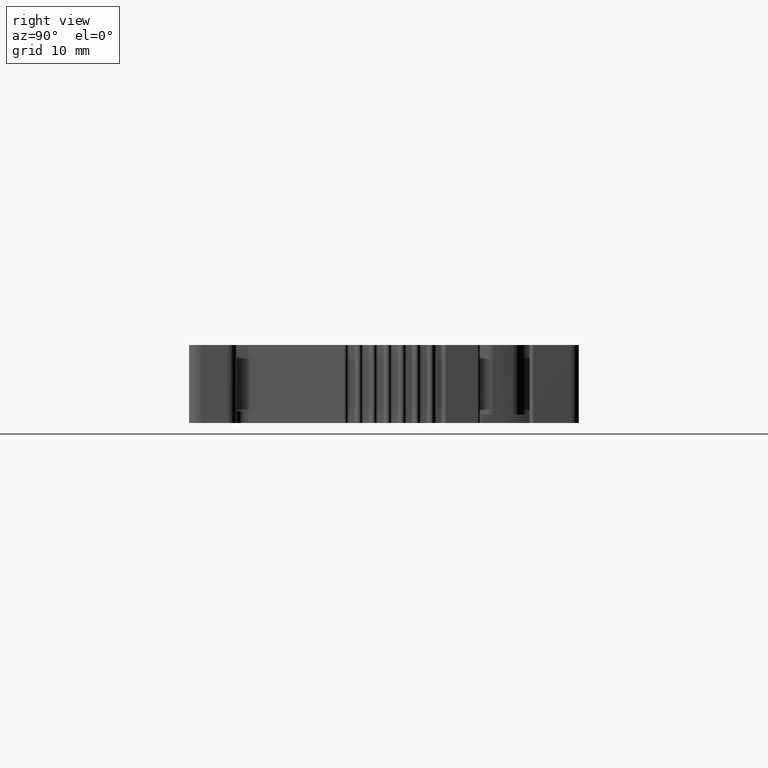
[diagram: clean part render]
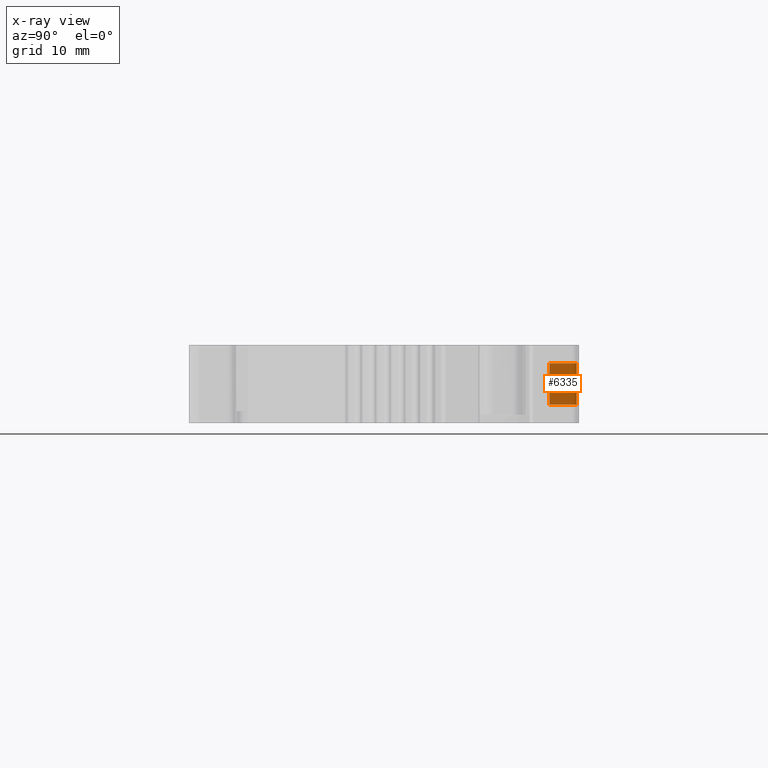
[diagram: x-ray — body ghosted, one internal face saturated and labeled with its STEP entity id]
A machine part, right view, then the same camera in x-ray: the body is ghosted and one INTERNAL B-rep face — a face not visible from any outside direction — is saturated and labeled: STEP entity #6335.
In plain terms, the highlighted planar face has unit normal (1, 0, 0).
Its self-contained STEP definition (entity closure, byte-faithful):
#134 = AXIS2_PLACEMENT_3D ( 'NONE', #9452, #9432, #9437 ) ;
#3385 = VECTOR ( 'NONE', #7196, 1000.000000000000000 ) ;
#3419 = VECTOR ( 'NONE', #7173, 1000.000000000000000 ) ;
#3735 = VECTOR ( 'NONE', #7086, 1000.000000000000000 ) ;
#3762 = VECTOR ( 'NONE', #7099, 1000.000000000000000 ) ;
#4358 = ORIENTED_EDGE ( 'NONE', *, *, #5331, .F. ) ;
#4396 = ORIENTED_EDGE ( 'NONE', *, *, #5384, .T. ) ;
#4402 = ORIENTED_EDGE ( 'NONE', *, *, #5383, .T. ) ;
#4474 = ORIENTED_EDGE ( 'NONE', *, *, #5321, .F. ) ;
#5321 = EDGE_CURVE ( 'NONE', #11744, #11736, #7083, .T. ) ;
#5331 = EDGE_CURVE ( 'NONE', #11736, #11711, #7111, .T. ) ;
#5383 = EDGE_CURVE ( 'NONE', #11744, #11684, #7193, .T. ) ;
#5384 = EDGE_CURVE ( 'NONE', #11684, #11711, #7218, .T. ) ;
#6335 = ADVANCED_FACE ( 'NONE', ( #9415 ), #9421, .F. ) ;
#7083 = LINE ( 'NONE', #7102, #3762 ) ;
#7086 = DIRECTION ( 'NONE',  ( 0.0000000000000000000, 0.0000000000000000000, -1.000000000000000000 ) ) ;
#7099 = DIRECTION ( 'NONE',  ( 0.0000000000000000000, -1.000000000000000000, 0.0000000000000000000 ) ) ;
#7102 = CARTESIAN_POINT ( 'NONE',  ( 1919.347152070065000, -1.498854852143770000E-010, 1.750000000000000000 ) ) ;
#7111 = LINE ( 'NONE', #7113, #3735 ) ;
#7113 = CARTESIAN_POINT ( 'NONE',  ( 1919.347152070065000, 518.1833391115568500, 64.80301117275325900 ) ) ;
#7173 = DIRECTION ( 'NONE',  ( 0.0000000000000000000, 0.0000000000000000000, -1.000000000000000000 ) ) ;
#7190 = CARTESIAN_POINT ( 'NONE',  ( 1919.347152070065000, -1.498854852143770000E-010, -1.750000000000000000 ) ) ;
#7193 = LINE ( 'NONE', #7201, #3419 ) ;
#7196 = DIRECTION ( 'NONE',  ( 0.0000000000000000000, -1.000000000000000000, 0.0000000000000000000 ) ) ;
#7201 = CARTESIAN_POINT ( 'NONE',  ( 1919.347152070065000, 520.4804094398359700, 1.750000000000000000 ) ) ;
#7218 = LINE ( 'NONE', #7190, #3385 ) ;
#8169 = CARTESIAN_POINT ( 'NONE',  ( 1919.347152070065000, 518.1833391115568500, -1.750000000000000000 ) ) ;
#8171 = CARTESIAN_POINT ( 'NONE',  ( 1919.347152070065000, 520.4804094398359700, 1.750000000000000000 ) ) ;
#8214 = CARTESIAN_POINT ( 'NONE',  ( 1919.347152070065000, 520.4804094398359700, -1.750000000000000000 ) ) ;
#8217 = CARTESIAN_POINT ( 'NONE',  ( 1919.347152070065000, 518.1833391115568500, 1.750000000000000000 ) ) ;
#9415 = FACE_OUTER_BOUND ( 'NONE', #10390, .T. ) ;
#9421 = PLANE ( 'NONE',  #134 ) ;
#9432 = DIRECTION ( 'NONE',  ( 1.000000000000000000, 0.0000000000000000000, 0.0000000000000000000 ) ) ;
#9437 = DIRECTION ( 'NONE',  ( 0.0000000000000000000, 0.0000000000000000000, -1.000000000000000000 ) ) ;
#9452 = CARTESIAN_POINT ( 'NONE',  ( 1919.347152070065000, -1.498854852143770000E-010, 1.750000000000000000 ) ) ;
#10390 = EDGE_LOOP ( 'NONE', ( #4358, #4474, #4402, #4396 ) ) ;
#11684 = VERTEX_POINT ( 'NONE', #8214 ) ;
#11711 = VERTEX_POINT ( 'NONE', #8169 ) ;
#11736 = VERTEX_POINT ( 'NONE', #8217 ) ;
#11744 = VERTEX_POINT ( 'NONE', #8171 ) ;